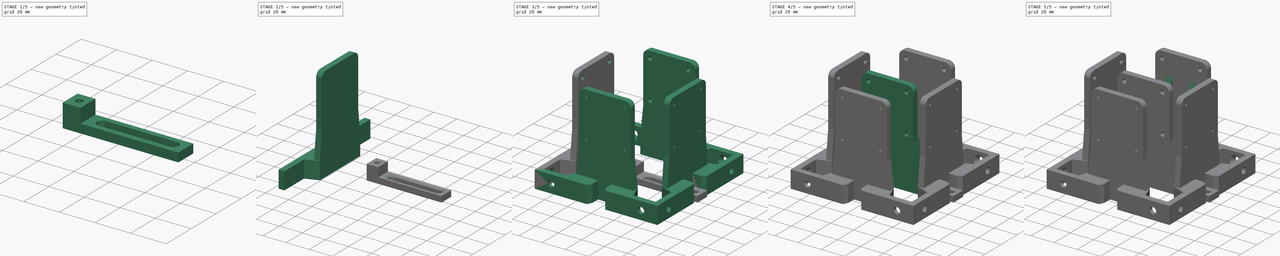
[diagram: build sequence overview — one tinted view per stage of 5, left to right]
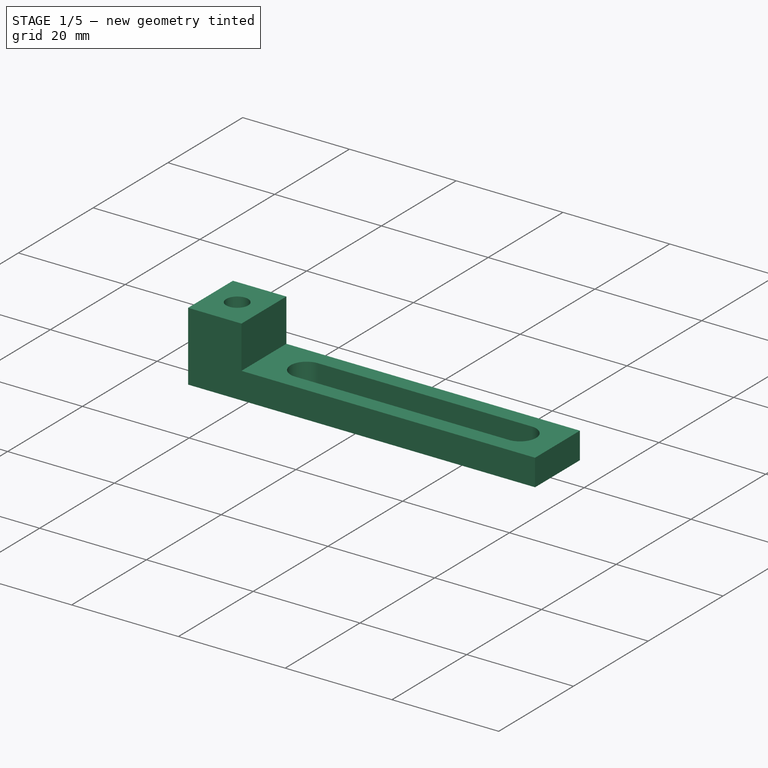
[diagram: stage 1 of 5 — iso view after this stage's code; geometry added in this stage tinted green]
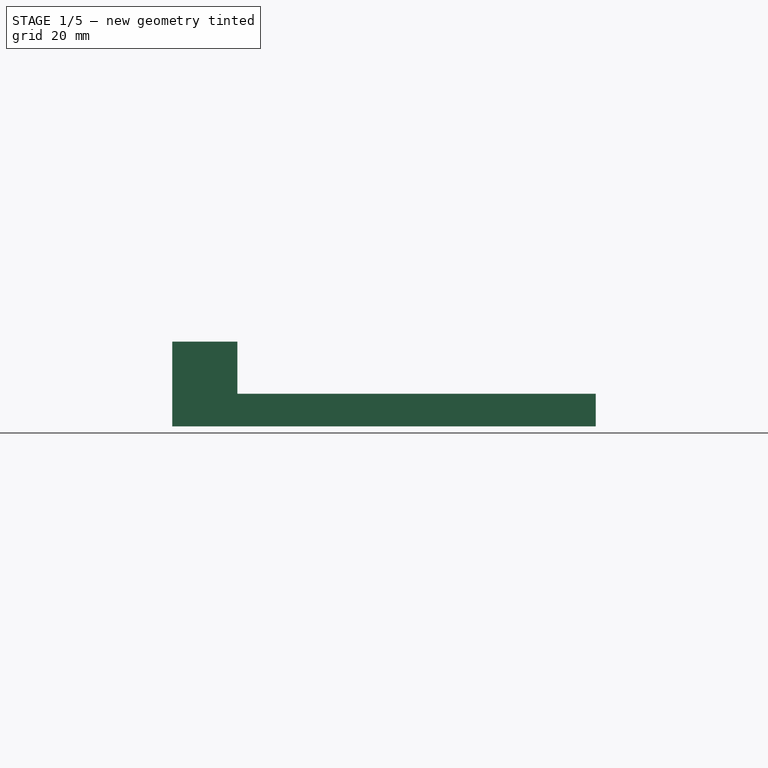
[diagram: stage 1 of 5 — front view after this stage's code; geometry added in this stage tinted green]
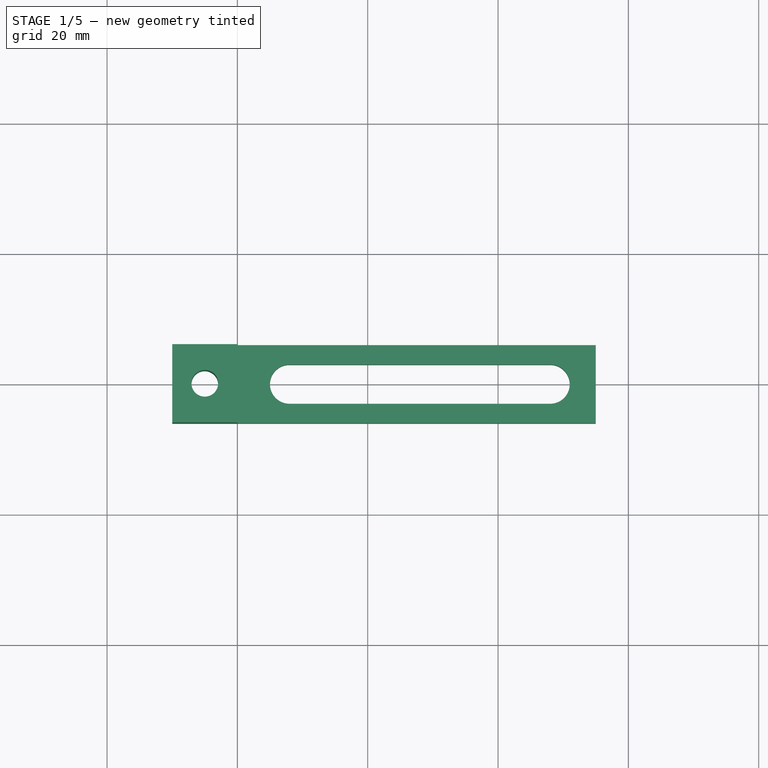
[diagram: stage 1 of 5 — top view after this stage's code; geometry added in this stage tinted green]
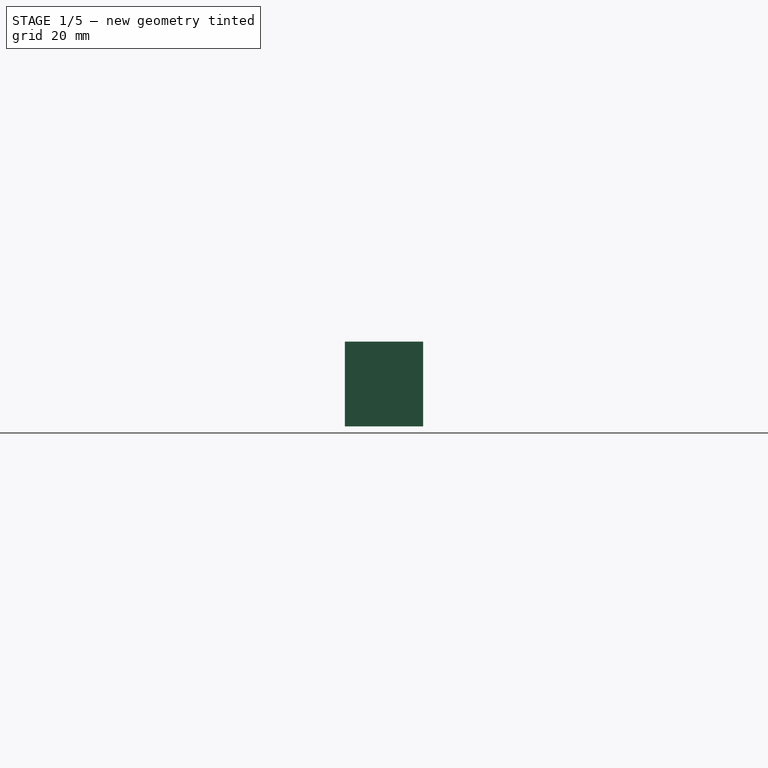
[diagram: stage 1 of 5 — right view after this stage's code; geometry added in this stage tinted green]
FCSTD DOCUMENT  (FreeCAD 0.21R33668 +26 (Git))
Label: digital_indicator_holder_all5
License: All rights reserved
LicenseURL: https://en.wikipedia.org/wiki/All_rights_reserved
objects: Sketcher::SketchObject×12, PartDesign::Pad×6, PartDesign::Plane×5, PartDesign::Hole×3, PartDesign::Pocket×3, PartDesign::Body×2, PartDesign::PolarPattern×1, PartDesign::Mirrored×1, PartDesign::Chamfer×1
note: 47 computed .brp shape members not serialized (recipe doc carries the construction recipe); baked Part::Feature solids carry a one-line shape summary decoded from their .brp

FEATURE [PartDesign::Body] Body
  Group = -> [Sketch,Pad,DatumPlane,Sketch001,Pad001,Sketch002,Hole,Sketch004,DatumPlane001,Sketch005,Hole001,PolarPattern,Pad002,DatumPlane002,Sketch006,Pad003,Sketch007,Hole002,DatumPlane003,Sketch008,Pad004,Mirrored,Sketch009,Pocket]
  Origin = -> Origin
  Tip = -> Pocket
FEATURE [Sketcher::SketchObject] Sketch010
  FullyConstrained = true
  MapMode = 5
  Placement = pos=(0,0,0) rot=(1,0,0;1.5708rad)
  Support = -> [XZ_Plane001]
  sketch-geometry (6):
    g0: LineSegment StartX=0 StartY=13 StartZ=0 EndX=0 EndY=5 EndZ=0
    g1: LineSegment StartX=0 StartY=5 StartZ=0 EndX=55 EndY=5 EndZ=0
    g2: LineSegment StartX=55 StartY=5 StartZ=0 EndX=55 EndY=0 EndZ=0
    g3: LineSegment StartX=0 StartY=13 StartZ=0 EndX=-10 EndY=13 EndZ=0
    g4: LineSegment StartX=-10 StartY=13 StartZ=0 EndX=-10 EndY=0 EndZ=0
    g5: LineSegment StartX=-10 StartY=0 StartZ=0 EndX=55 EndY=0 EndZ=0
  constraints (18):
    c: PointOnObject(g0,g-2)
    c: PointOnObject(g0,g-2)
    c: Coincident(g1,g0)
    c: Coincident(g2,g1)
    c: Coincident(g3,g0)
    c: Horizontal(g3)
    c: Coincident(g4,g3)
    c: PointOnObject(g4,g-1)
    c: Vertical(g4)
    c: Coincident(g5,g4)
    c: Coincident(g5,g2)
    c: Horizontal(g5)
    c: Horizontal(g1)
    c: Vertical(g2)
    c: DistanceX(g5,g5) = 65
    c: DistanceY(g4,g4) = 13
    c: DistanceY(g2,g2) = 5
    c: DistanceX(g3,g3) = 10
FEATURE [PartDesign::Pad] Pad005
  Direction = (0,-1,-2e-16)
  Length = 12
  Length2 = 10
  Midplane = true
  Placement = pos=(0,0,0) rot=(1,0,0;1.5708rad)
  Profile = -> Sketch010
  ReferenceAxis = -> Sketch010 [N_Axis]
  Type = 0
FEATURE [Sketcher::SketchObject] Sketch011
  FullyConstrained = true
  MapMode = 5
  Support = -> [XY_Plane001]
  sketch-geometry (4):
    g0: ArcOfCircle CenterX=8 CenterY=0 CenterZ=0 NormalX=0 NormalY=0 NormalZ=1 AngleXU=0 Radius=3 StartAngle=1.5708 EndAngle=4.71239
    g1: ArcOfCircle CenterX=48 CenterY=0 CenterZ=0 NormalX=0 NormalY=0 NormalZ=1 AngleXU=0 Radius=3 StartAngle=4.71239 EndAngle=7.85398
    g2: LineSegment StartX=8 StartY=-3 StartZ=0 EndX=48 EndY=-3 EndZ=0
    g3: LineSegment StartX=48 StartY=3 StartZ=0 EndX=8 EndY=3 EndZ=0
  constraints (10):
    c: Tangent(g0,g2) = -1.5708
    c: Tangent(g2,g1) = -1.5708
    c: Tangent(g1,g3) = -1.5708
    c: Tangent(g3,g0) = -1.5708
    c: Equal(g0,g1)
    c: PointOnObject(g0,g-1)
    c: PointOnObject(g1,g-1)
    c: Diameter(g1) = 6
    c: DistanceX(g-1,g0) = 8
    c: DistanceX(g0,g1) = 40
FEATURE [PartDesign::Pocket] Pocket001
  BaseFeature = -> Pad005
  Direction = (0,0,-1)
  Length = 5
  Length2 = 5
  Placement = pos=(0,0,0) rot=(1,0,0;1.5708rad)
  Profile = -> Sketch011
  ReferenceAxis = -> Sketch011 [N_Axis]
  Reversed = true
  Type = 0
FEATURE [PartDesign::Plane] DatumPlane004
  AttachmentOffset = pos=(0,0,13) rot=(0,0,1;0rad)
  Length = 92.6491
  MapMode = 5
  Placement = pos=(0,0,13) rot=(0,0,1;0rad)
  ResizeMode = 0
  Support = -> [XY_Plane001]
  Width = 62.6491
FEATURE [Sketcher::SketchObject] Sketch012
  FullyConstrained = true
  MapMode = 5
  Placement = pos=(0,0,13) rot=(0,0,1;0rad)
  Support = -> [DatumPlane004]
  sketch-geometry (1):
    g0: Circle CenterX=-5 CenterY=0 CenterZ=0 NormalX=0 NormalY=0 NormalZ=1 AngleXU=0 Radius=2.05
  constraints (3):
    c: PointOnObject(g0,g-1)
    c: Diameter(g0) = 4.1
    c: DistanceX(g0,g-1) = 5
FEATURE [PartDesign::Pocket] Pocket002
  BaseFeature = -> Pocket001
  Direction = (0,0,-1)
  Length = 8
  Length2 = 5
  Midplane = true
  Placement = pos=(0,0,0) rot=(1,0,0;1.5708rad)
  Profile = -> Sketch012
  ReferenceAxis = -> Sketch012 [N_Axis]
  Type = 1
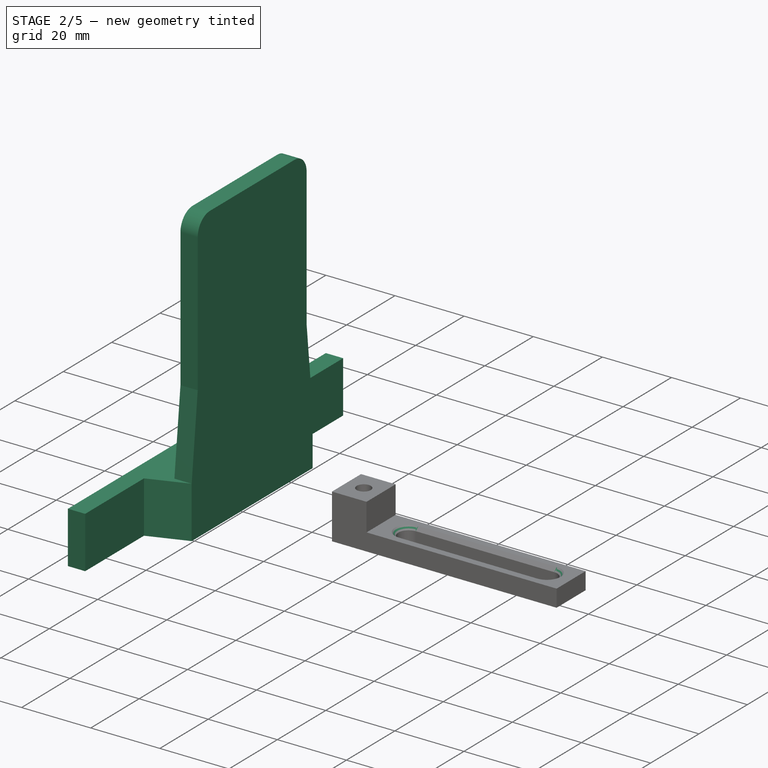
[diagram: stage 2 of 5 — iso view after this stage's code; geometry added in this stage tinted green]
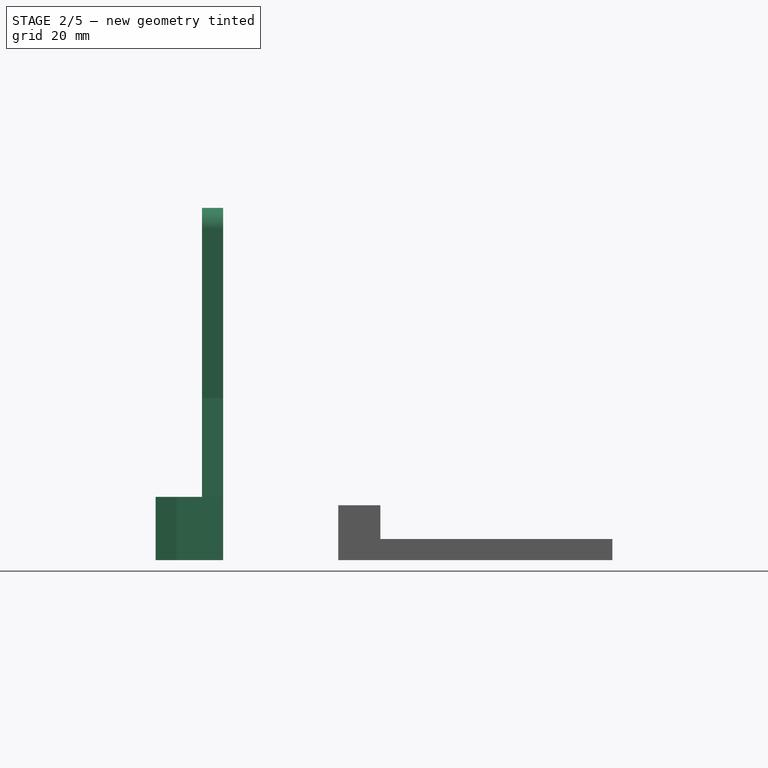
[diagram: stage 2 of 5 — front view after this stage's code; geometry added in this stage tinted green]
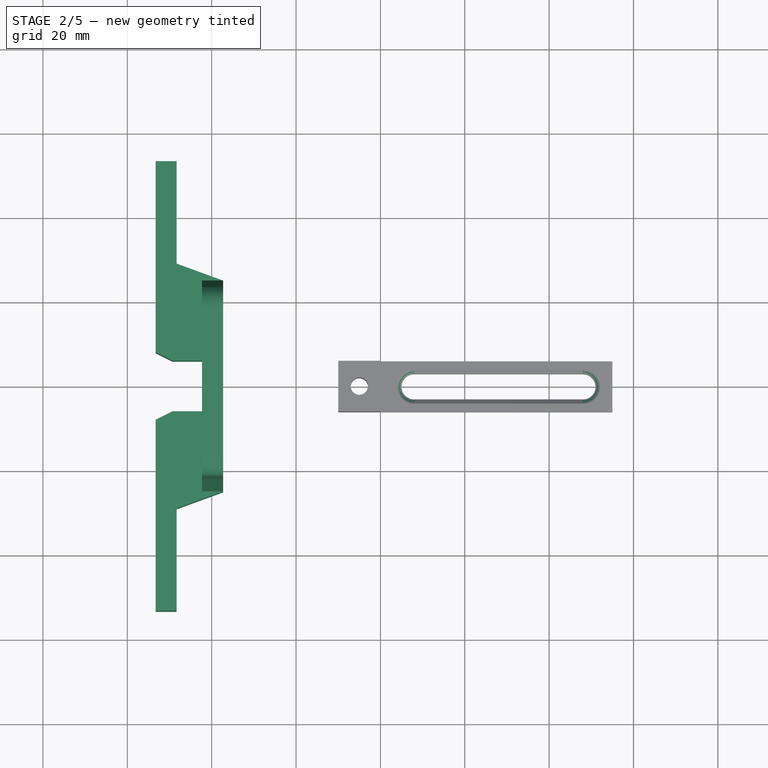
[diagram: stage 2 of 5 — top view after this stage's code; geometry added in this stage tinted green]
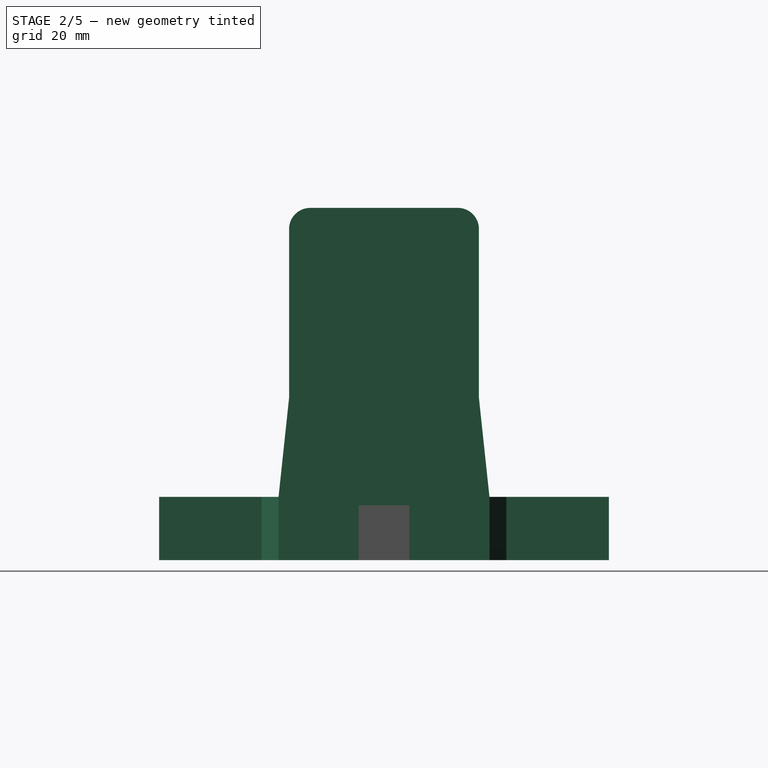
[diagram: stage 2 of 5 — right view after this stage's code; geometry added in this stage tinted green]
FEATURE [Sketcher::SketchObject] Sketch
  FullyConstrained = true
  MapMode = 5
  Support = -> [XY_Plane]
  sketch-geometry (16):
    g0: LineSegment StartX=-53.3 StartY=-53.3 StartZ=0 EndX=-53.3 EndY=-8 EndZ=0
    g1: LineSegment StartX=-48.3 StartY=53.3 StartZ=0 EndX=-48.3 EndY=29.0037 EndZ=0
    g2: LineSegment StartX=-48.3 StartY=29.0037 StartZ=0 EndX=-37.3 EndY=25 EndZ=0
    g3: LineSegment StartX=-37.3 StartY=-25 StartZ=0 EndX=-48.3 EndY=-29.0037 EndZ=0
    g4: LineSegment StartX=-48.3 StartY=-29.0037 StartZ=0 EndX=-48.3 EndY=-53.3 EndZ=0
    g5: LineSegment StartX=-48.3 StartY=-53.3 StartZ=0 EndX=-53.3 EndY=-53.3 EndZ=0
    g6: LineSegment StartX=-53.3 StartY=53.3 StartZ=0 EndX=-48.3 EndY=53.3 EndZ=0
    g7: LineSegment StartX=-53.3 StartY=8 StartZ=0 EndX=-53.3 EndY=53.3 EndZ=0
    g8: LineSegment StartX=-37.3 StartY=25 StartZ=0 EndX=-37.3 EndY=-25 EndZ=0
    g9: LineSegment StartX=-49.3 StartY=6 StartZ=0 EndX=-42.3 EndY=6 EndZ=0
    g10: LineSegment StartX=-42.3 StartY=6 StartZ=0 EndX=-42.3 EndY=-6 EndZ=0
    g11: LineSegment StartX=-42.3 StartY=-6 StartZ=0 EndX=-49.3 EndY=-6 EndZ=0
    g12: LineSegment StartX=-53.3 StartY=8 StartZ=0 EndX=-49.3 EndY=6 EndZ=0
    g13: LineSegment StartX=-49.3 StartY=-6 StartZ=0 EndX=-53.3 EndY=-8 EndZ=0
    g14: Circle CenterX=-49.2 CenterY=0 CenterZ=0 NormalX=0 NormalY=0 NormalZ=1 AngleXU=0 Radius=4.1
    g15: GeomPoint X=-42.3 Y=0 Z=0
  constraints (44):
    c: Vertical(g0)
    c: Vertical(g1)
    c: Coincident(g2,g1)
    c: Coincident(g3,g8)
    c: Coincident(g4,g3)
    c: Vertical(g4)
    c: Coincident(g5,g4)
    c: Coincident(g5,g0)
    c: Coincident(g6,g7)
    c: Coincident(g6,g1)
    c: Horizontal(g6)
    c: Horizontal(g5)
    c: Symmetric(g2,g8,g-1)
    c: Symmetric(g1,g3,g-1)
    c: DistanceY(g0,g6) = 106.6
    c: DistanceX(g5,g5) = 5
    c: DistanceX(g3,g3) = 11
    c: DistanceY(g3,g2) = 50
    c: Coincident(g8,g2)
    c: DistanceX(g3,g-1) = 37.3
    c: Angle(g2,g1) = 1.91986
    c: Horizontal(g9)
    c: Coincident(g10,g9)
    c: Coincident(g11,g10)
    c: Horizontal(g11)
    c: DistanceY(g10,g10) = 12
    c: Symmetric(g6,g0,g-1)
    c: Vertical(g12,g13)
    c: Coincident(g7,g12)
    c: Coincident(g9,g12)
    c: Coincident(g11,g13)
    c: Coincident(g0,g13)
    c: DistanceX(g0,g10) = 11
    c: DistanceY(g9,g7) = 2
    c: Symmetric(g7,g0,g-1)
    c: Symmetric(g9,g10,g-1)
    c: DistanceX(g7,g-1) = 53.3
    c: DistanceX(g7,g9) = 4
    c: PointOnObject(g14,g-1)
    c: PointOnObject(g15,g-1)
    c: DistanceX(g3,g15) = 6
    c: Diameter(g14) = 8.2
    c: DistanceX(g14,g15) = 6.9
    c: DistanceX(g15,g3) = 5
FEATURE [PartDesign::Pad] Pad
  Direction = (0,0,1)
  Length = 15
  Length2 = 10
  Profile = -> Sketch
  ReferenceAxis = -> Sketch [N_Axis]
  Type = 0
FEATURE [PartDesign::Plane] DatumPlane
  AttachmentOffset = pos=(0,0,-37.3) rot=(0,0,1;0rad)
  Length = 128.109
  MapMode = 5
  Placement = pos=(-37.3,8.3e-15,-8.3e-15) rot=(0.57735,0.57735,0.57735;2.0944rad)
  ResizeMode = 0
  Support = -> [YZ_Plane]
  Width = 130.009
FEATURE [Sketcher::SketchObject] Sketch001
  FullyConstrained = true
  MapMode = 5
  Placement = pos=(-37.3,8.3e-15,-8.3e-15) rot=(0.57735,0.57735,0.57735;2.0944rad)
  Support = -> [DatumPlane]
  sketch-geometry (11):
    g0: LineSegment StartX=-25 StartY=15 StartZ=0 EndX=25 EndY=15 EndZ=0
    g1: LineSegment StartX=-25 StartY=15 StartZ=0 EndX=-22.5 EndY=38.5 EndZ=0
    g2: LineSegment StartX=-22.5 StartY=38.5 StartZ=0 EndX=-22.5 EndY=78.5 EndZ=0
    g3: LineSegment StartX=-17.5 StartY=83.5 StartZ=0 EndX=17.5 EndY=83.5 EndZ=0
    g4: LineSegment StartX=22.5 StartY=78.5 StartZ=0 EndX=22.5 EndY=38.5 EndZ=0
    g5: LineSegment StartX=22.5 StartY=38.5 StartZ=0 EndX=25 EndY=15 EndZ=0
    g6: GeomPoint X=0 Y=61 Z=0
    g7: ArcOfCircle CenterX=-17.5 CenterY=78.5 CenterZ=0 NormalX=0 NormalY=0 NormalZ=1 AngleXU=0 Radius=5 StartAngle=1.5708 EndAngle=3.14159
    g8: ArcOfCircle CenterX=17.5 CenterY=78.5 CenterZ=0 NormalX=0 NormalY=0 NormalZ=1 AngleXU=0 Radius=5 StartAngle=2e-16 EndAngle=1.5708
    g9: LineSegment StartX=-22.5 StartY=38.5 StartZ=0 EndX=22.5 EndY=83.5 EndZ=0
    g10: LineSegment StartX=22.5 StartY=38.5 StartZ=0 EndX=-22.5 EndY=83.5 EndZ=0
  constraints (29):
    c: DistanceY(g-1,g0) = 15
    c: Symmetric(g0,g0,g-2)
    c: Coincident(g1,g0)
    c: Coincident(g2,g1)
    c: Vertical(g2)
    c: Coincident(g5,g4)
    c: Coincident(g5,g0)
    c: Symmetric(g1,g4,g-2)
    c: PointOnObject(g6,g-2)
    c: DistanceX(g0,g0) = 50
    c: Tangent(g3,g7) = 1.5708
    c: Tangent(g2,g7) = 1.5708
    c: Tangent(g3,g8) = 1.5708
    c: Tangent(g4,g8) = 1.5708
    c: Horizontal(g3)
    c: Vertical(g4)
    c: Equal(g8,g7)
    c: Diameter(g8) = 10
    c: DistanceX(g2,g4) = 45
    c: DistanceY(g4,g3) = 45
    c: Coincident(g9,g1)
    c: Coincident(g10,g4)
    c: Horizontal(g3,g10)
    c: Vertical(g2,g10)
    c: Vertical(g4,g9)
    c: Horizontal(g9,g3)
    c: PointOnObject(g6,g10)
    c: DistanceY(g-1,g6) = 61
    c: DistanceY(g-1,g4) = 38.5
FEATURE [PartDesign::Pad] Pad001
  BaseFeature = -> Pad
  Direction = (1,-1e-16,1e-16)
  Length = 5
  Length2 = 10
  Profile = -> Sketch001
  ReferenceAxis = -> Sketch001 [N_Axis]
  Refine = true
  Reversed = true
  Type = 0
FEATURE [PartDesign::Chamfer] Chamfer
  Angle = 45
  Base = -> Pocket002 [Edge15,Edge12,Edge13,Edge14]
  BaseFeature = -> Pocket002
  ChamferType = 0
  FlipDirection = false
  Placement = pos=(0,0,0) rot=(1,0,0;1.5708rad)
  Size = 1
  Size2 = 1
  SupportTransform = false
  UseAllEdges = false
FEATURE [PartDesign::Body] Body001
  Group = -> [Sketch010,Pad005,Sketch011,Pocket001,DatumPlane004,Sketch012,Pocket002,Chamfer]
  Origin = -> Origin001
  Tip = -> Chamfer
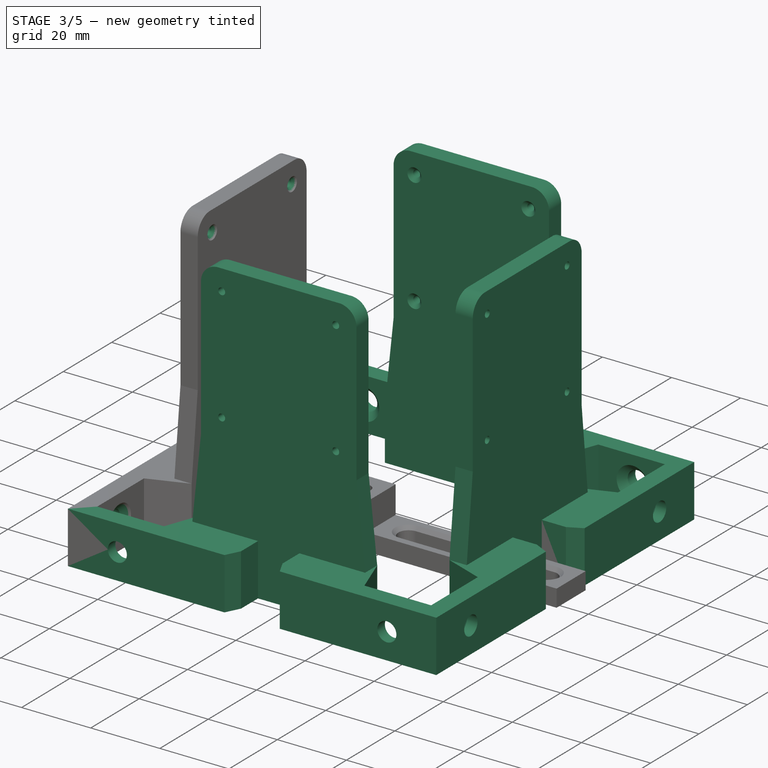
[diagram: stage 3 of 5 — iso view after this stage's code; geometry added in this stage tinted green]
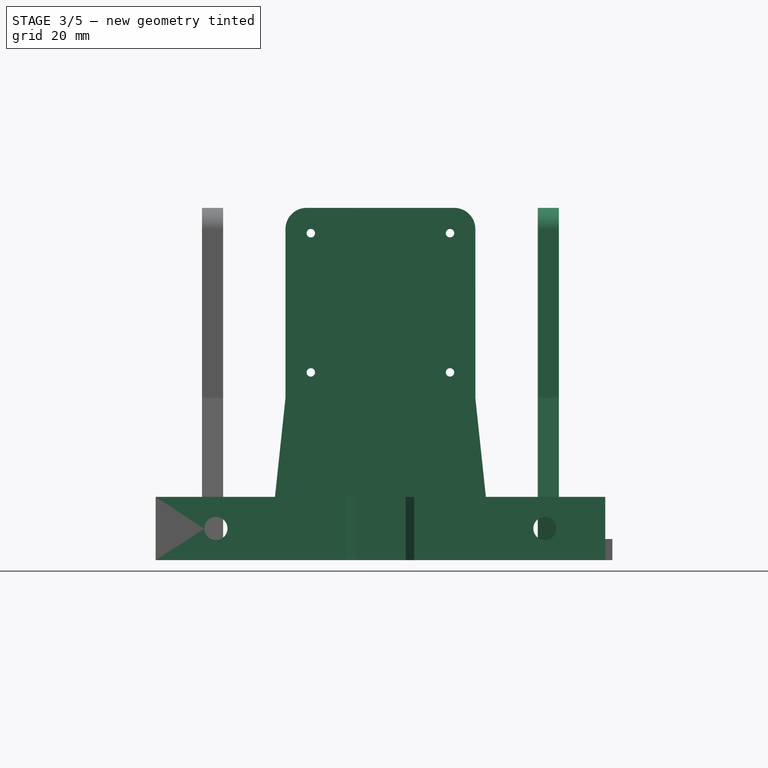
[diagram: stage 3 of 5 — front view after this stage's code; geometry added in this stage tinted green]
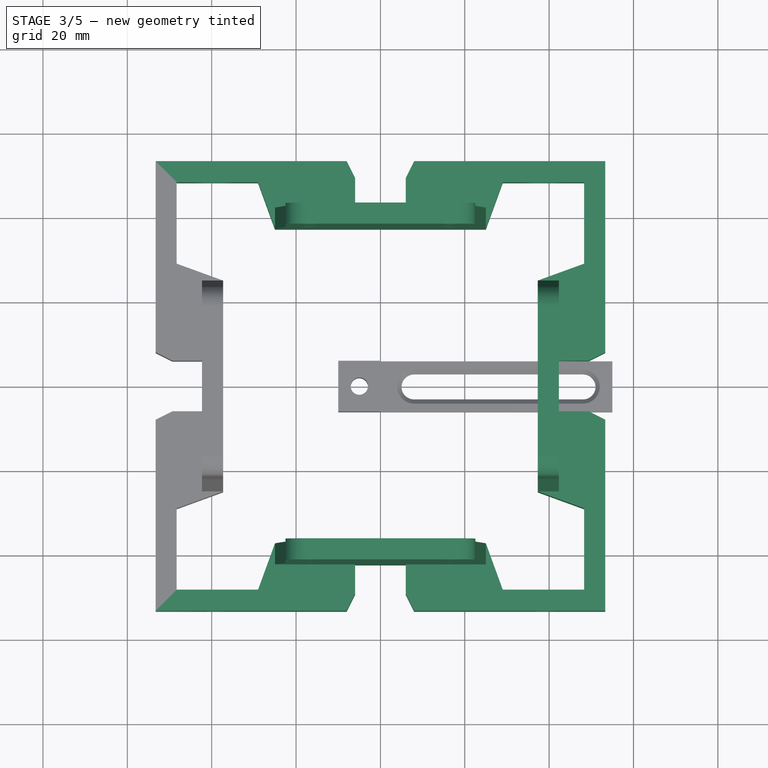
[diagram: stage 3 of 5 — top view after this stage's code; geometry added in this stage tinted green]
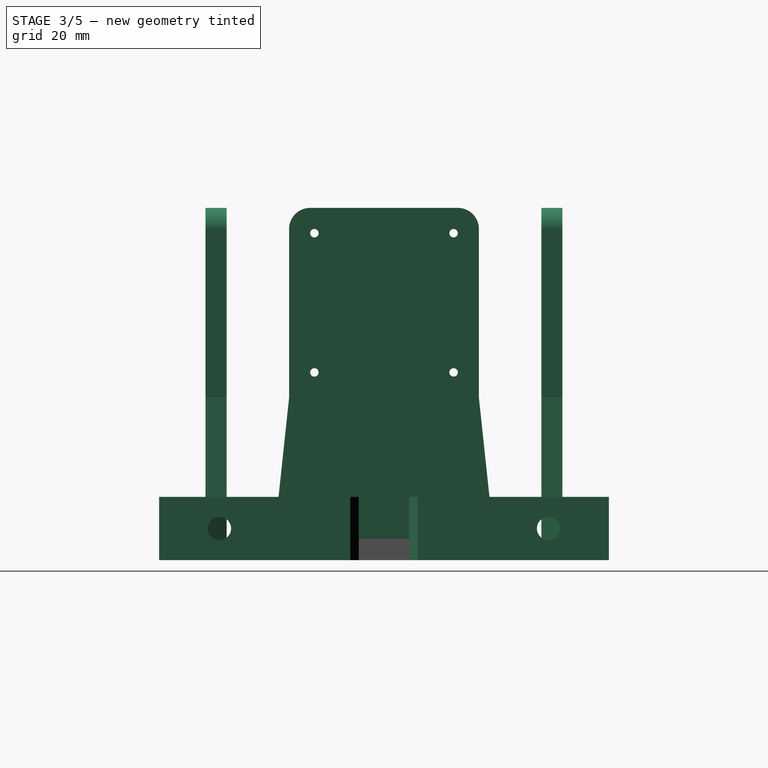
[diagram: stage 3 of 5 — right view after this stage's code; geometry added in this stage tinted green]
FEATURE [Sketcher::SketchObject] Sketch002
  FullyConstrained = true
  MapMode = 5
  Placement = pos=(-37.3,8.3e-15,-8.3e-15) rot=(0.57735,0.57735,0.57735;2.0944rad)
  Support = -> [DatumPlane]
  sketch-geometry (8):
    g0: GeomPoint X=0 Y=61 Z=0
    g1: LineSegment StartX=-16.5 StartY=44.5 StartZ=0 EndX=16.5 EndY=77.5 EndZ=0
    g2: LineSegment StartX=16.5 StartY=44.5 StartZ=0 EndX=-16.5 EndY=77.5 EndZ=0
    g3: Circle CenterX=-16.5 CenterY=77.5 CenterZ=0 NormalX=0 NormalY=0 NormalZ=1 AngleXU=0 Radius=1
    g4: Circle CenterX=16.5 CenterY=77.5 CenterZ=0 NormalX=0 NormalY=0 NormalZ=1 AngleXU=0 Radius=1
    g5: Circle CenterX=16.5 CenterY=44.5 CenterZ=0 NormalX=0 NormalY=0 NormalZ=1 AngleXU=0 Radius=1
    g6: Circle CenterX=-16.5 CenterY=44.5 CenterZ=0 NormalX=0 NormalY=0 NormalZ=1 AngleXU=0 Radius=1
    g7: Circle CenterX=0 CenterY=61 CenterZ=0 NormalX=0 NormalY=0 NormalZ=1 AngleXU=0 Radius=28.3
  constraints (19):
    c: PointOnObject(g0,g-2)
    c: PointOnObject(g0,g2)
    c: DistanceY(g-1,g0) = 61
    c: Horizontal(g5,g6)
    c: Vertical(g5,g4)
    c: Symmetric(g4,g3,g-2)
    c: Vertical(g3,g6)
    c: Equal(g5,g4)
    c: Equal(g5,g3)
    c: Equal(g5,g6)
    c: Diameter(g5) = 2
    c: DistanceY(g5,g4) = 33
    c: Coincident(g1,g4)
    c: Coincident(g2,g3)
    c: Coincident(g2,g5)
    c: Coincident(g1,g6)
    c: DistanceX(g3,g4) = 33
    c: Coincident(g7,g0)
    c: Diameter(g7) = 56.6
FEATURE [PartDesign::Hole] Hole
  BaseFeature = -> Pad001
  CustomThreadClearance = 0
  Depth = 25
  DepthType = 0
  Diameter = 2
  DrillForDepth = false
  DrillPoint = 1
  DrillPointAngle = 118
  HoleCutCountersinkAngle = 90
  HoleCutCustomValues = false
  HoleCutDepth = 0
  HoleCutDiameter = 4
  HoleCutType = 2
  ModelThread = false
  Profile = -> Sketch002
  Tapered = false
  TaperedAngle = 90
  ThreadClass = 0
  ThreadDepth = 25
  ThreadDepthType = 0
  ThreadDirection = 0
  ThreadFit = 0
  ThreadSize = 0
  ThreadType = 0
  Threaded = false
  UseCustomThreadClearance = false
FEATURE [Sketcher::SketchObject] Sketch004
  FullyConstrained = true
  MapMode = 5
  Placement = pos=(0,0,0) rot=(0.57735,0.57735,0.57735;2.0944rad)
  Support = -> [YZ_Plane]
  sketch-geometry (5):
    g0: LineSegment StartX=-37.3 StartY=65 StartZ=0 EndX=-19.4 EndY=60 EndZ=0
    g1: LineSegment StartX=-9.4 StartY=0 StartZ=0 EndX=-37.3 EndY=0 EndZ=0
    g2: LineSegment StartX=-37.3 StartY=65 StartZ=0 EndX=-37.3 EndY=0 EndZ=0
    g3: LineSegment StartX=-19.4 StartY=60 StartZ=0 EndX=-9.4 EndY=60 EndZ=0
    g4: LineSegment StartX=-9.4 StartY=60 StartZ=0 EndX=-9.4 EndY=0 EndZ=0
  constraints (15):
    c: PointOnObject(g1,g-1)
    c: Coincident(g2,g0)
    c: Coincident(g2,g1)
    c: Vertical(g2)
    c: DistanceY(g2,g2) = 65
    c: Horizontal(g3)
    c: Coincident(g0,g3)
    c: Vertical(g4)
    c: Coincident(g3,g4)
    c: Coincident(g1,g4)
    c: DistanceX(g3,g-1) = 9.4
    c: DistanceX(g1,g1) = 27.9
    c: DistanceX(g3,g3) = 10
    c: DistanceY(g4,g4) = 60
    c: Horizontal(g1)
FEATURE [PartDesign::Plane] DatumPlane001
  AttachmentOffset = pos=(0,0,-48.3) rot=(0,0,1;0rad)
  Length = 128.109
  MapMode = 5
  Placement = pos=(-48.3,1.07e-14,-1.07e-14) rot=(0.57735,0.57735,0.57735;2.0944rad)
  ResizeMode = 0
  Support = -> [YZ_Plane]
  Width = 130.009
FEATURE [Sketcher::SketchObject] Sketch005
  FullyConstrained = true
  MapMode = 5
  Placement = pos=(-48.3,1.07e-14,-1.07e-14) rot=(0.57735,0.57735,0.57735;2.0944rad)
  Support = -> [DatumPlane001]
  sketch-geometry (2):
    g0: Circle CenterX=39 CenterY=7.5 CenterZ=0 NormalX=0 NormalY=0 NormalZ=1 AngleXU=0 Radius=2.5
    g1: Circle CenterX=-39 CenterY=7.5 CenterZ=0 NormalX=0 NormalY=0 NormalZ=1 AngleXU=0 Radius=2.5
  constraints (5):
    c: Symmetric(g1,g0,g-2)
    c: Equal(g0,g1)
    c: Diameter(g0) = 5
    c: DistanceY(g-1,g0) = 7.5
    c: DistanceX(g1,g0) = 78
FEATURE [PartDesign::Hole] Hole001
  BaseFeature = -> Hole
  CustomThreadClearance = 0
  Depth = 25
  DepthType = 0
  Diameter = 5.5
  DrillForDepth = false
  DrillPoint = 1
  DrillPointAngle = 118
  HoleCutCountersinkAngle = 90
  HoleCutCustomValues = false
  HoleCutDepth = 0
  HoleCutDiameter = 9.3
  HoleCutType = 2
  ModelThread = false
  Profile = -> Sketch005
  Tapered = false
  TaperedAngle = 90
  ThreadClass = 0
  ThreadDepth = 25
  ThreadDepthType = 0
  ThreadDirection = 0
  ThreadFit = 0
  ThreadSize = 0
  ThreadType = 0
  Threaded = false
  UseCustomThreadClearance = false
FEATURE [PartDesign::PolarPattern] PolarPattern
  Angle = 360
  Axis = -> Sketch [N_Axis]
  BaseFeature = -> Hole001
  Occurrences = 4
  Originals = -> [Pad,Pad001,Hole,Hole001]
  Refine = true
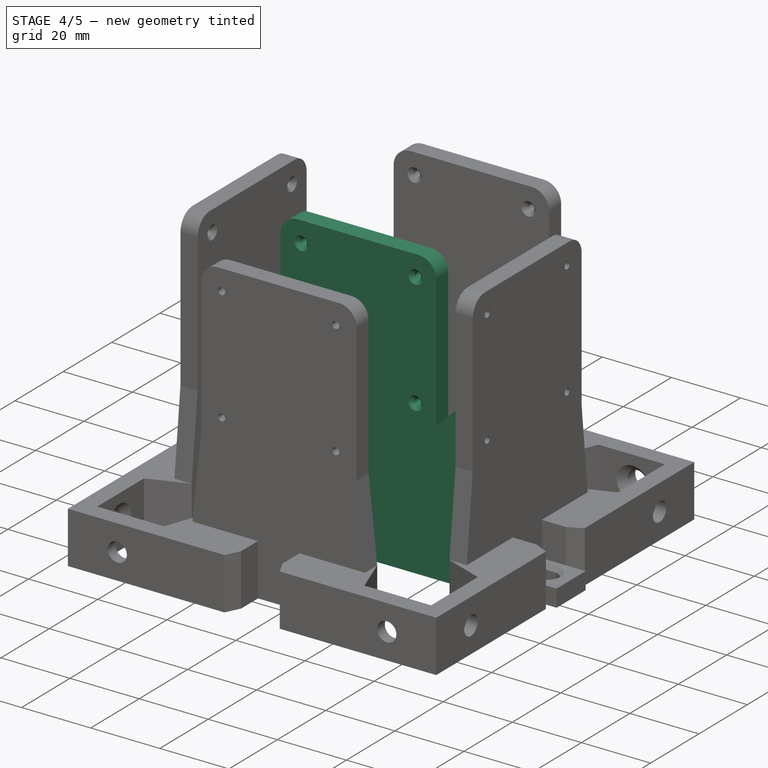
[diagram: stage 4 of 5 — iso view after this stage's code; geometry added in this stage tinted green]
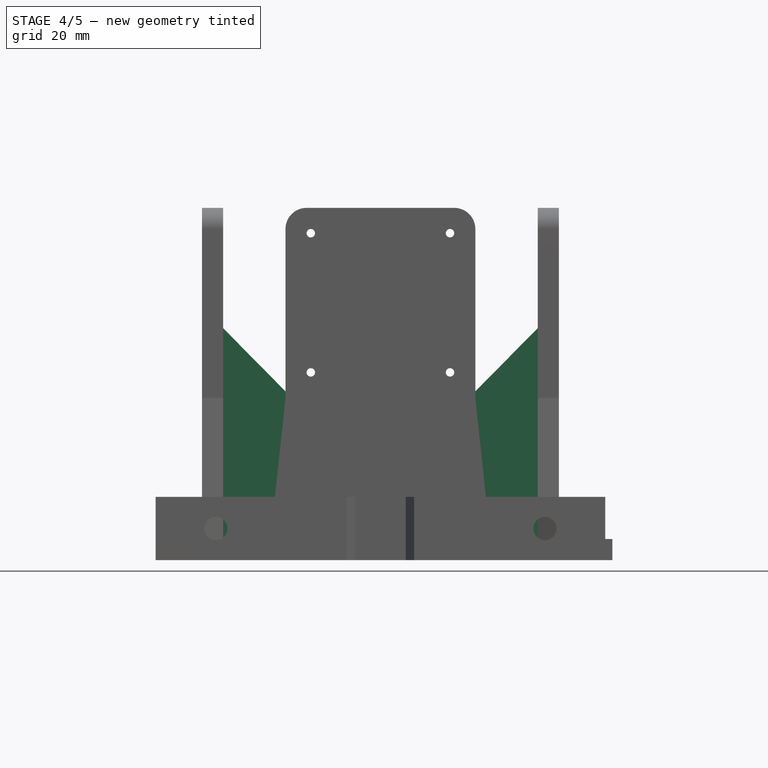
[diagram: stage 4 of 5 — front view after this stage's code; geometry added in this stage tinted green]
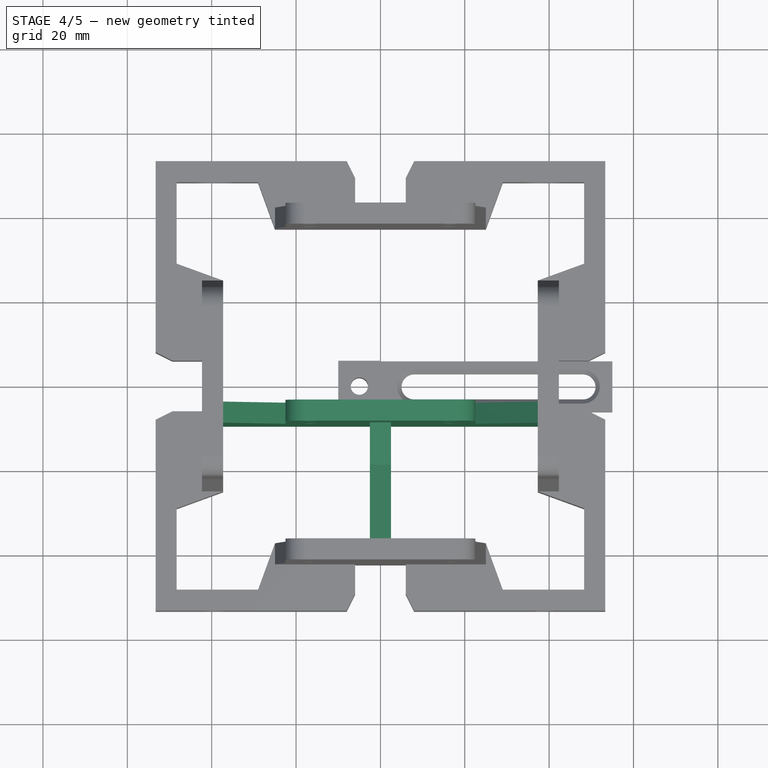
[diagram: stage 4 of 5 — top view after this stage's code; geometry added in this stage tinted green]
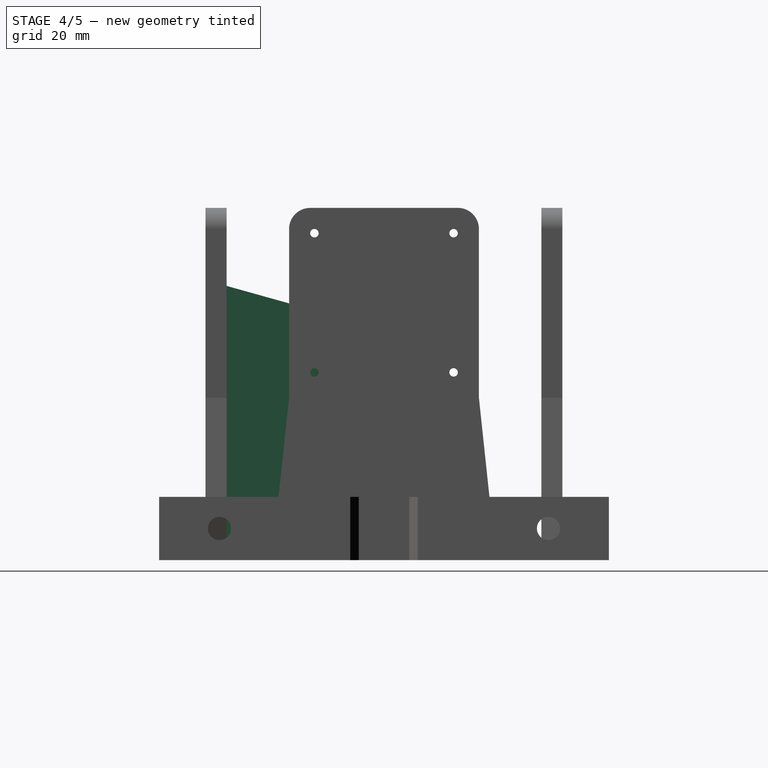
[diagram: stage 4 of 5 — right view after this stage's code; geometry added in this stage tinted green]
FEATURE [PartDesign::Pad] Pad002
  BaseFeature = -> PolarPattern
  Direction = (1,-2e-16,3e-16)
  Length = 5
  Length2 = 10
  Midplane = true
  Profile = -> Sketch004
  ReferenceAxis = -> Sketch004 [N_Axis]
  Type = 0
FEATURE [PartDesign::Plane] DatumPlane002
  AttachmentOffset = pos=(0,0,9.4) rot=(0,0,1;0rad)
  Length = 128.109
  MapMode = 5
  Placement = pos=(0,-9.4,-2.1e-15) rot=(1,0,0;1.5708rad)
  ResizeMode = 0
  Support = -> [XZ_Plane]
  Width = 130.009
FEATURE [Sketcher::SketchObject] Sketch006
  FullyConstrained = true
  MapMode = 5
  Placement = pos=(0,-9.4,-2.1e-15) rot=(1,0,0;1.5708rad)
  Support = -> [DatumPlane002]
  sketch-geometry (10):
    g0: LineSegment StartX=-22.5 StartY=40 StartZ=0 EndX=-22.5 EndY=78.5 EndZ=0
    g1: LineSegment StartX=-17.5 StartY=83.5 StartZ=0 EndX=17.5 EndY=83.5 EndZ=0
    g2: LineSegment StartX=22.5 StartY=78.5 StartZ=0 EndX=22.5 EndY=40 EndZ=0
    g3: ArcOfCircle CenterX=17.5 CenterY=78.5 CenterZ=0 NormalX=0 NormalY=0 NormalZ=1 AngleXU=0 Radius=5 StartAngle=0 EndAngle=1.5708
    g4: ArcOfCircle CenterX=-17.5 CenterY=78.5 CenterZ=0 NormalX=0 NormalY=0 NormalZ=1 AngleXU=0 Radius=5 StartAngle=1.5708 EndAngle=3.14159
    g5: LineSegment StartX=-37.3 StartY=55 StartZ=0 EndX=-37.3 EndY=0 EndZ=0
    g6: LineSegment StartX=-37.3 StartY=0 StartZ=0 EndX=37.3 EndY=1e-16 EndZ=0
    g7: LineSegment StartX=37.3 StartY=1e-16 StartZ=0 EndX=37.3 EndY=55 EndZ=0
    g8: LineSegment StartX=-37.3 StartY=55 StartZ=0 EndX=-22.5 EndY=40 EndZ=0
    g9: LineSegment StartX=22.5 StartY=40 StartZ=0 EndX=37.3 EndY=55 EndZ=0
  constraints (26):
    c: Vertical(g0)
    c: Horizontal(g1)
    c: Vertical(g2)
    c: Tangent(g1,g3) = 1.5708
    c: Tangent(g2,g3) = 1.5708
    c: Tangent(g1,g4) = 1.5708
    c: Tangent(g0,g4) = 1.5708
    c: Equal(g3,g4)
    c: Diameter(g3) = 10
    c: PointOnObject(g5,g-1)
    c: Vertical(g5)
    c: Coincident(g6,g5)
    c: Coincident(g7,g6)
    c: Vertical(g7)
    c: Symmetric(g6,g5,g-2)
    c: DistanceX(g6,g6) = 74.6
    c: DistanceY(g5,g5) = 55
    c: Horizontal(g5,g7)
    c: Coincident(g8,g5)
    c: Coincident(g7,g9)
    c: DistanceY(g6,g9) = 40
    c: Coincident(g2,g9)
    c: Coincident(g0,g8)
    c: Symmetric(g2,g0,g-2)
    c: DistanceY(g-1,g1) = 83.5
    c: DistanceX(g0,g2) = 45
FEATURE [PartDesign::Pad] Pad003
  BaseFeature = -> Pad002
  Direction = (0,-1,-2e-16)
  Length = 5
  Length2 = 10
  Profile = -> Sketch006
  ReferenceAxis = -> Sketch006 [N_Axis]
  Refine = true
  Reversed = true
  Type = 0
FEATURE [Sketcher::SketchObject] Sketch007
  FullyConstrained = true
  MapMode = 5
  Placement = pos=(0,-9.4,-2.1e-15) rot=(1,0,0;1.5708rad)
  Support = -> [DatumPlane002]
  sketch-geometry (9):
    g0: Circle CenterX=-16.5 CenterY=77.5 CenterZ=0 NormalX=0 NormalY=0 NormalZ=1 AngleXU=0 Radius=1
    g1: Circle CenterX=16.5 CenterY=77.5 CenterZ=0 NormalX=0 NormalY=0 NormalZ=1 AngleXU=0 Radius=1
    g2: Circle CenterX=16.5 CenterY=44.5 CenterZ=0 NormalX=0 NormalY=0 NormalZ=1 AngleXU=0 Radius=1
    g3: Circle CenterX=-16.5 CenterY=44.5 CenterZ=0 NormalX=0 NormalY=0 NormalZ=1 AngleXU=0 Radius=1
    g4: LineSegment StartX=-16.5 StartY=44.5 StartZ=0 EndX=16.5 EndY=77.5 EndZ=0
    g5: LineSegment StartX=16.5 StartY=44.5 StartZ=0 EndX=-16.5 EndY=77.5 EndZ=0
    g6: GeomPoint X=0 Y=61 Z=0
    g7: Circle CenterX=0 CenterY=61 CenterZ=0 NormalX=0 NormalY=0 NormalZ=1 AngleXU=0 Radius=28.3
    g8: LineSegment StartX=0 StartY=0 StartZ=0 EndX=0 EndY=30 EndZ=0
  constraints (22):
    c: Equal(g0,g3)
    c: Equal(g3,g2)
    c: Equal(g2,g1)
    c: Vertical(g1,g2)
    c: Vertical(g0,g3)
    c: Horizontal(g3,g2)
    c: DistanceY(g2,g1) = 33
    c: DistanceX(g0,g1) = 33
    c: Symmetric(g1,g0,g-2)
    c: Coincident(g4,g3)
    c: Coincident(g4,g1)
    c: Coincident(g5,g2)
    c: Coincident(g5,g0)
    c: PointOnObject(g6,g5)
    c: PointOnObject(g6,g-2)
    c: DistanceY(g-1,g6) = 61
    c: Diameter(g2) = 2
    c: Coincident(g7,g6)
    c: Diameter(g7) = 56.6
    c: Coincident(g8,g-1)
    c: PointOnObject(g8,g-2)
    c: DistanceY(g8,g8) = 30
FEATURE [PartDesign::Hole] Hole002
  BaseFeature = -> Pad003
  CustomThreadClearance = 0
  Depth = 25
  DepthType = 0
  Diameter = 2
  DrillForDepth = false
  DrillPoint = 1
  DrillPointAngle = 118
  HoleCutCountersinkAngle = 90
  HoleCutCustomValues = false
  HoleCutDepth = 0
  HoleCutDiameter = 4
  HoleCutType = 2
  ModelThread = false
  Profile = -> Sketch007
  Tapered = false
  TaperedAngle = 90
  ThreadClass = 0
  ThreadDepth = 25
  ThreadDepthType = 0
  ThreadDirection = 0
  ThreadFit = 0
  ThreadSize = 0
  ThreadType = 0
  Threaded = false
  UseCustomThreadClearance = false
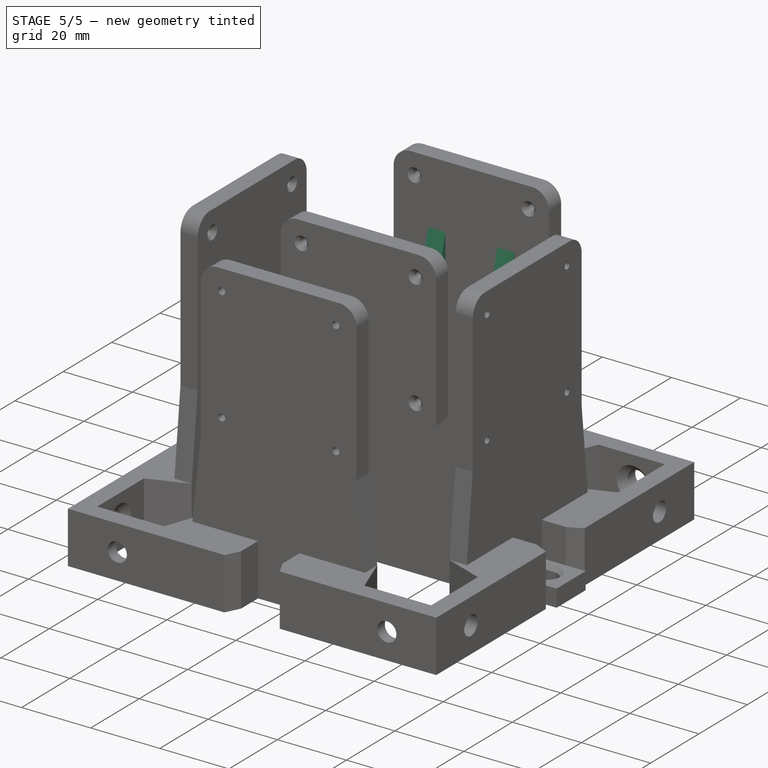
[diagram: stage 5 of 5 — iso view after this stage's code; geometry added in this stage tinted green]
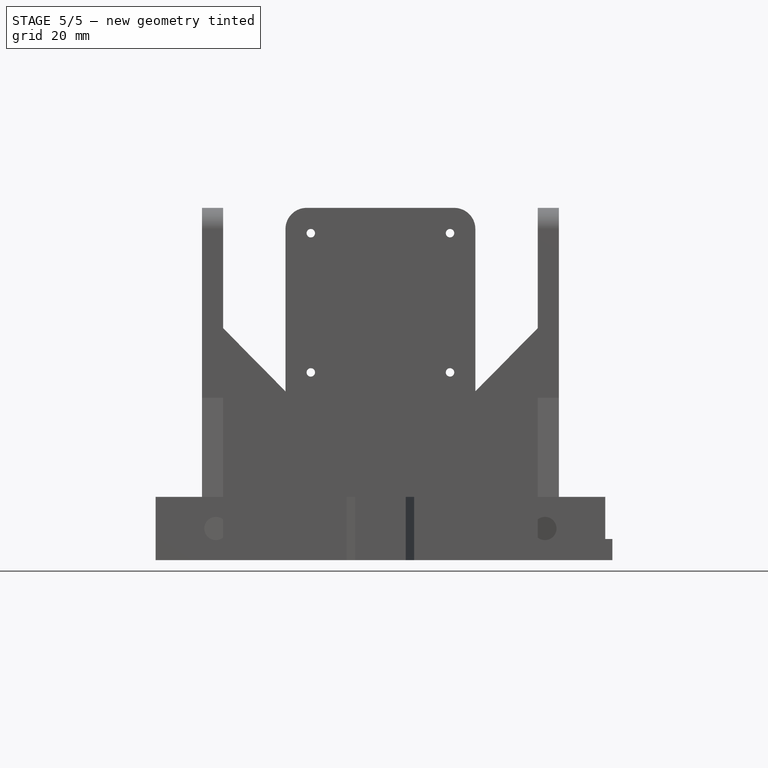
[diagram: stage 5 of 5 — front view after this stage's code; geometry added in this stage tinted green]
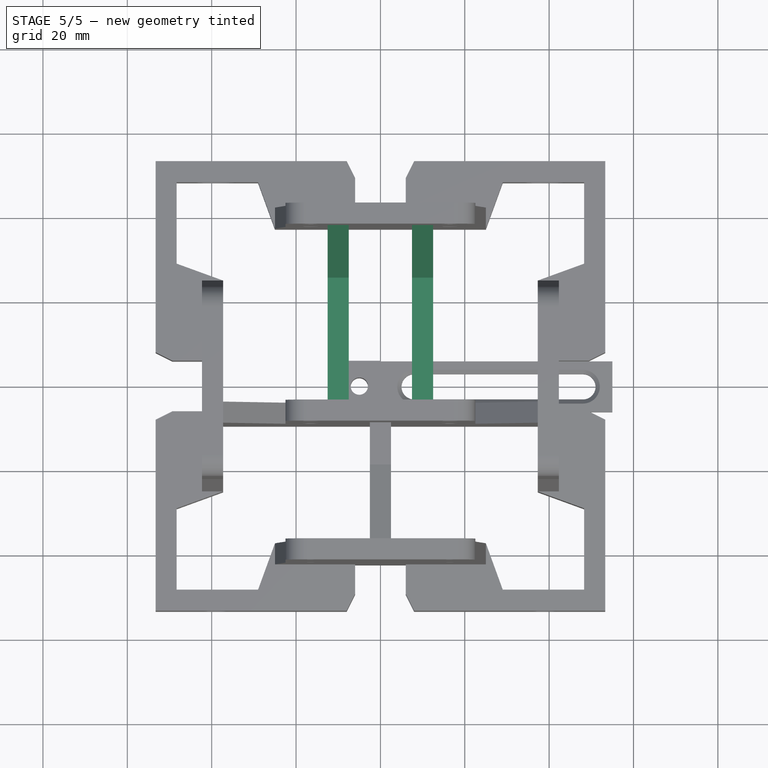
[diagram: stage 5 of 5 — top view after this stage's code; geometry added in this stage tinted green]
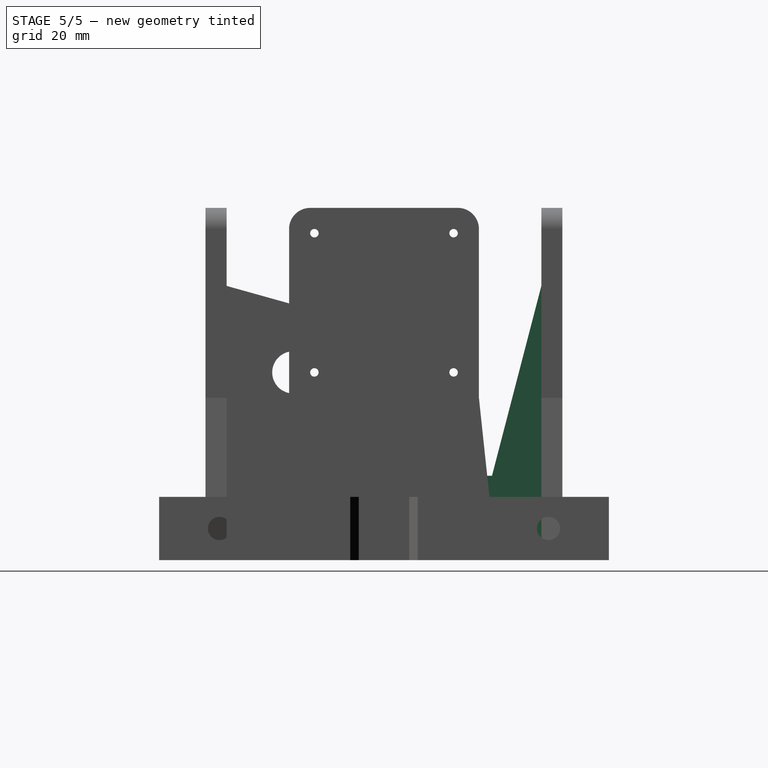
[diagram: stage 5 of 5 — right view after this stage's code; geometry added in this stage tinted green]
FEATURE [PartDesign::Plane] DatumPlane003
  AttachmentOffset = pos=(0,0,-10) rot=(0,0,1;0rad)
  Length = 128.109
  MapMode = 5
  Placement = pos=(-10,2.2e-15,-2.2e-15) rot=(0.57735,0.57735,0.57735;2.0944rad)
  ResizeMode = 0
  Support = -> [YZ_Plane]
  Width = 130.009
FEATURE [Sketcher::SketchObject] Sketch008
  FullyConstrained = true
  MapMode = 5
  Placement = pos=(-10,2.2e-15,-2.2e-15) rot=(0.57735,0.57735,0.57735;2.0944rad)
  Support = -> [DatumPlane003]
  sketch-geometry (5):
    g0: LineSegment StartX=-4.4 StartY=0 StartZ=0 EndX=-4.4 EndY=20 EndZ=0
    g1: LineSegment StartX=37.3 StartY=65 StartZ=0 EndX=37.3 EndY=0 EndZ=0
    g2: LineSegment StartX=37.3 StartY=0 StartZ=0 EndX=-4.4 EndY=0 EndZ=0
    g3: LineSegment StartX=-4.4 StartY=20 StartZ=0 EndX=25.6 EndY=20 EndZ=0
    g4: LineSegment StartX=25.6 StartY=20 StartZ=0 EndX=37.3 EndY=65 EndZ=0
  constraints (15):
    c: PointOnObject(g0,g-1)
    c: Vertical(g0)
    c: PointOnObject(g1,g-1)
    c: Vertical(g1)
    c: Coincident(g2,g1)
    c: Coincident(g2,g0)
    c: DistanceX(g2,g2) = 41.7
    c: DistanceY(g1,g1) = 65
    c: DistanceX(g0,g-1) = 4.4
    c: DistanceY(g0,g0) = 20
    c: Coincident(g3,g0)
    c: Horizontal(g3)
    c: Coincident(g4,g3)
    c: DistanceX(g3,g3) = 30
    c: Coincident(g4,g1)
FEATURE [PartDesign::Pad] Pad004
  BaseFeature = -> Hole002
  Direction = (1,-1e-16,1e-16)
  Length = 5
  Length2 = 10
  Midplane = true
  Profile = -> Sketch008
  ReferenceAxis = -> Sketch008 [N_Axis]
  Type = 0
FEATURE [PartDesign::Mirrored] Mirrored
  BaseFeature = -> Pad004
  MirrorPlane = -> YZ_Plane
  Originals = -> [Pad004]
FEATURE [Sketcher::SketchObject] Sketch009
  FullyConstrained = true
  MapMode = 5
  Placement = pos=(0,0,0) rot=(0.57735,0.57735,0.57735;2.0944rad)
  Support = -> [YZ_Plane]
  sketch-geometry (4):
    g0: ArcOfCircle CenterX=-16.5 CenterY=44.5 CenterZ=0 NormalX=0 NormalY=0 NormalZ=1 AngleXU=0 Radius=5 StartAngle=4.71239 EndAngle=7.85399
    g1: ArcOfCircle CenterX=-21.5 CenterY=44.5 CenterZ=0 NormalX=0 NormalY=0 NormalZ=1 AngleXU=0 Radius=5 StartAngle=1.5708 EndAngle=4.71239
    g2: LineSegment StartX=-21.5 StartY=49.5 StartZ=0 EndX=-16.5 EndY=49.5 EndZ=0
    g3: LineSegment StartX=-21.5 StartY=39.5 StartZ=0 EndX=-16.5 EndY=39.5 EndZ=0
  constraints (12):
    c: Diameter(g0) = 10
    c: DistanceY(g-1,g0) = 44.5
    c: DistanceX(g0,g-1) = 16.5
    c: Horizontal(g1,g0)
    c: Equal(g0,g1)
    c: Horizontal(g2)
    c: Horizontal(g3)
    c: DistanceX(g1,g0) = 5
    c: Coincident(g0,g2)
    c: Tangent(g1,g2) = 1.5708
    c: Tangent(g1,g3) = -1.5708
    c: Coincident(g0,g3)
FEATURE [PartDesign::Pocket] Pocket
  BaseFeature = -> Mirrored
  Direction = (-1,2e-16,-3e-16)
  Length = 5
  Length2 = 5
  Midplane = true
  Profile = -> Sketch009
  ReferenceAxis = -> Sketch009 [N_Axis]
  Type = 0
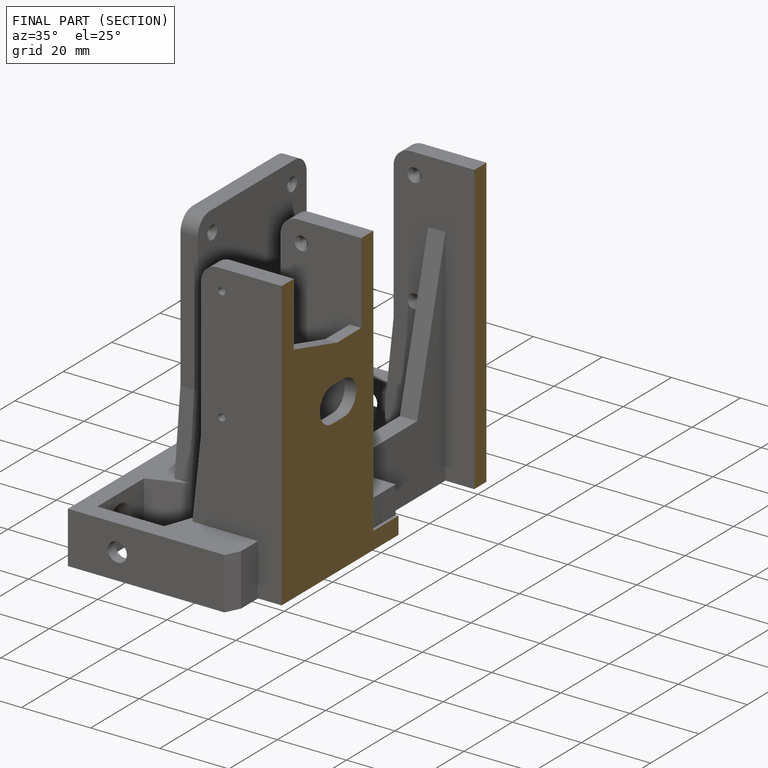
[diagram: finished part — half-section view (interior)]
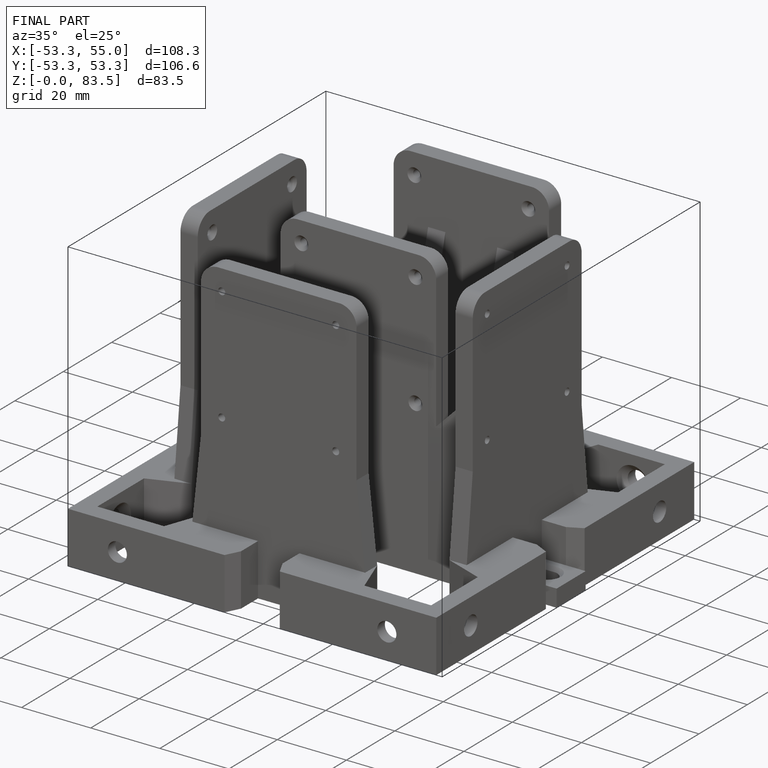
[diagram: finished part — iso view with bounding-box wireframe]
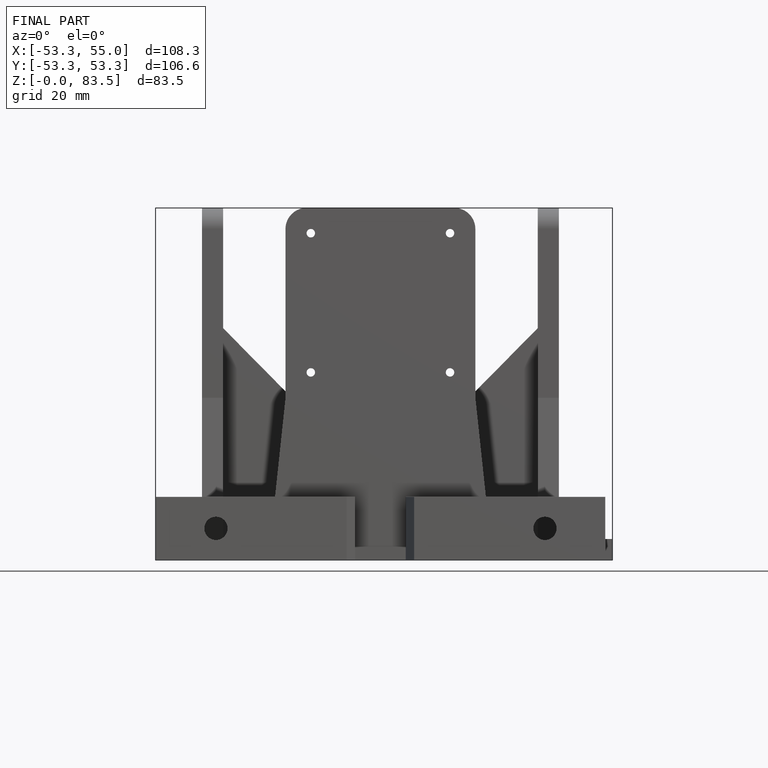
[diagram: finished part — front view with bounding-box wireframe]
